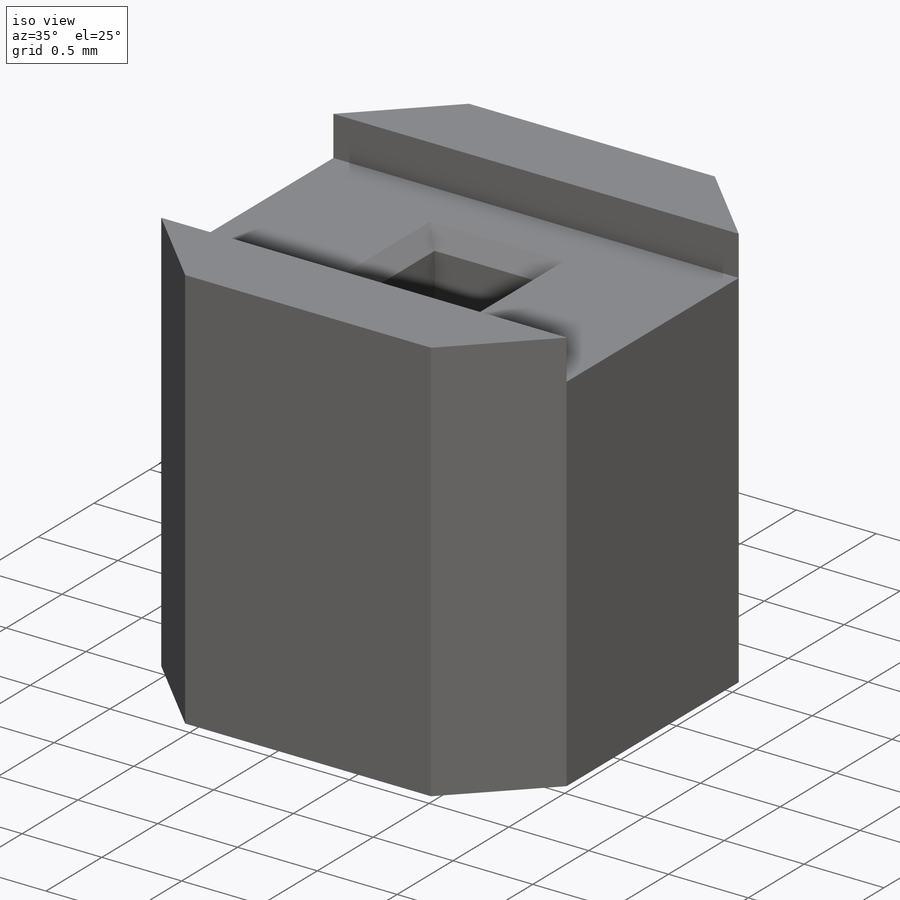
[diagram: iso view]
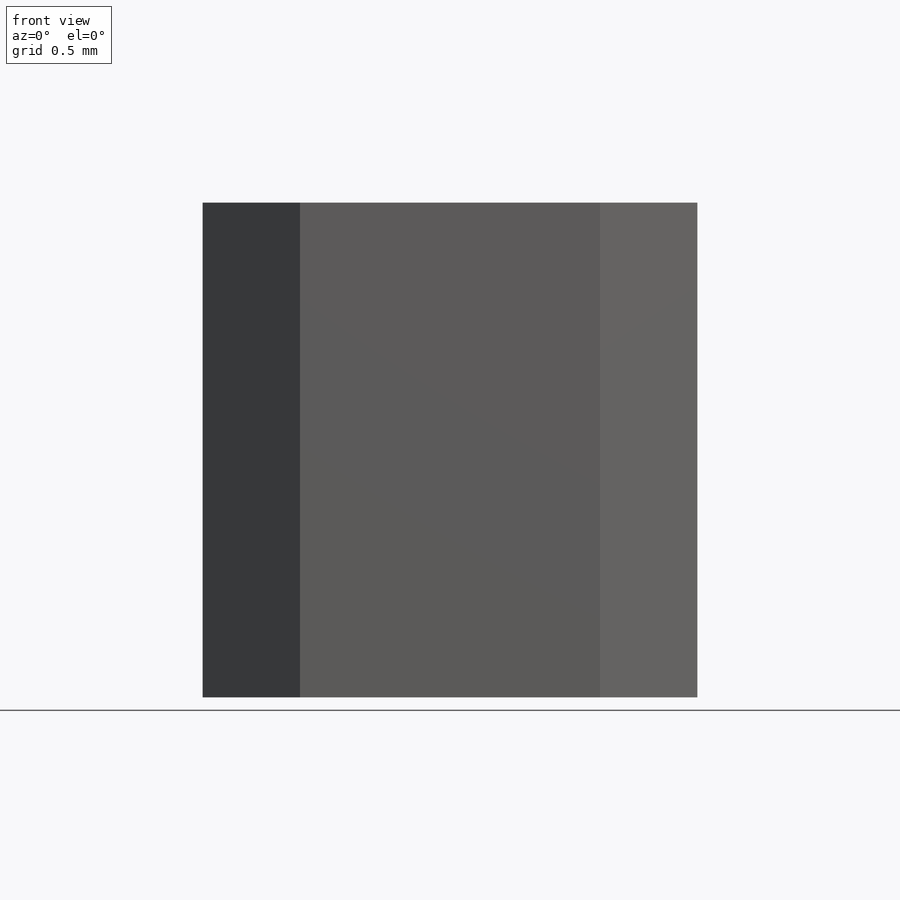
[diagram: front view]
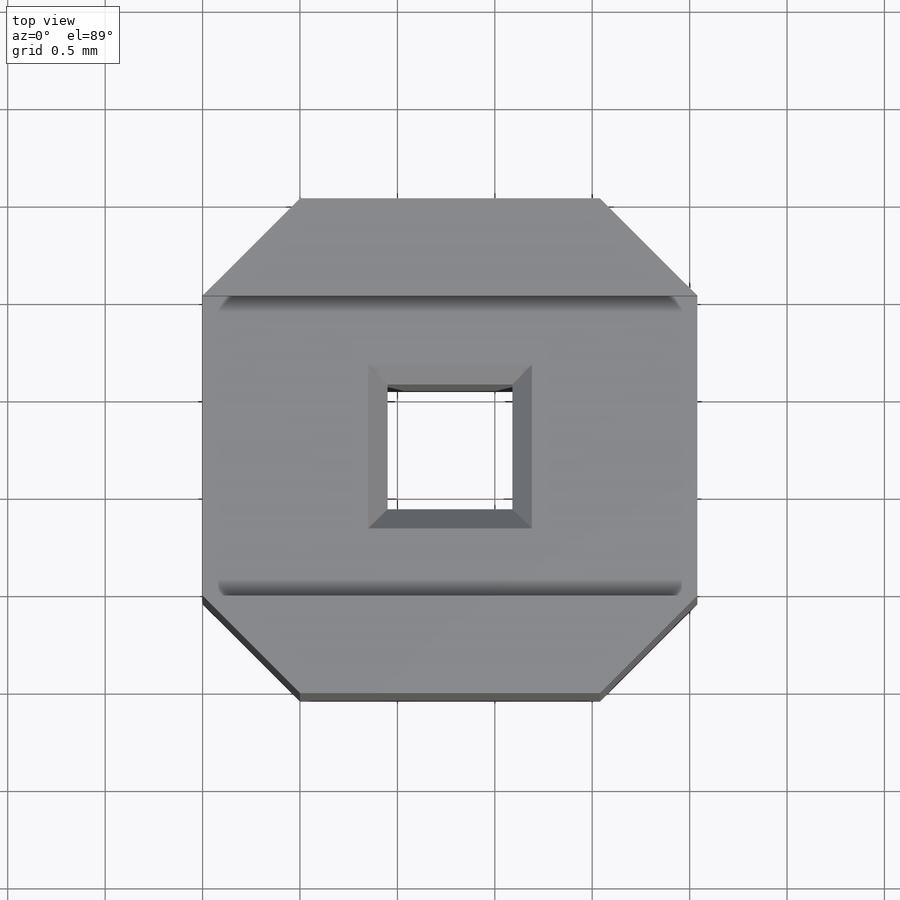
[diagram: top view]
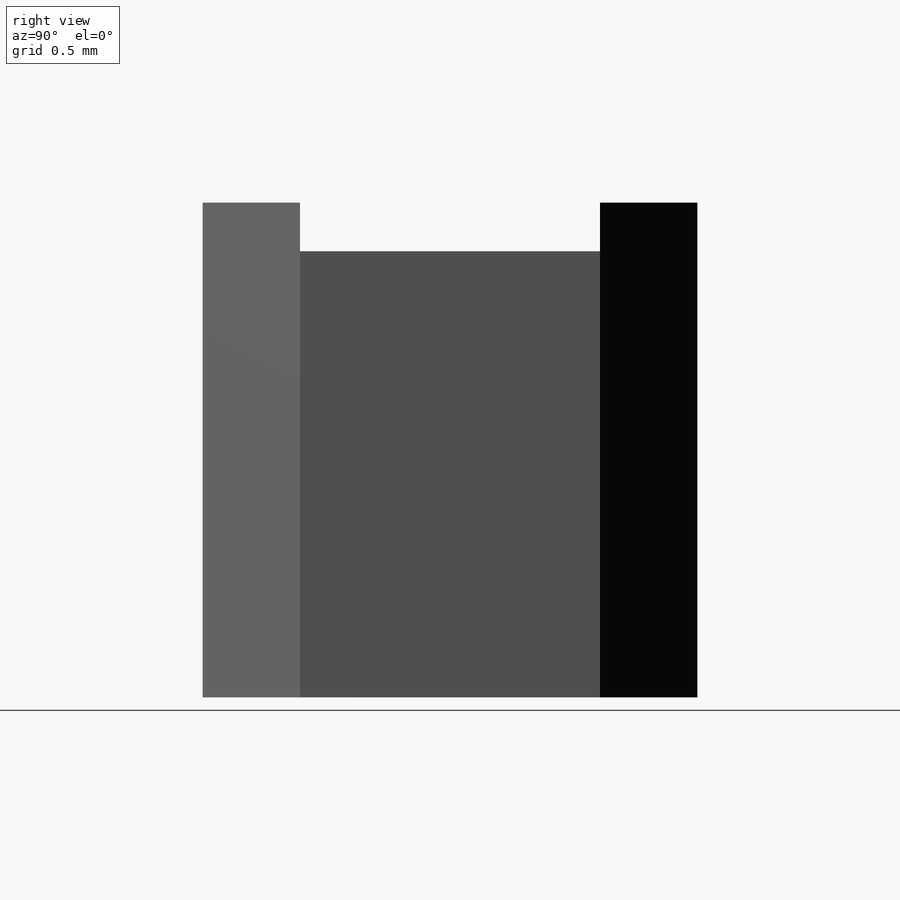
[diagram: right view]
SOLIDWORKS PART (.sldprt)
format: sldprt  version: not decoded by parser v0  size: 171,008 bytes
history: native  units: mm
features: sketch x3, chamfer x2, cut_extrude x2, material x1, extrude x1 (+13 scaffold rows collapsed)
feature tree (22):
  scaffold x13  (default folders/planes/origin — collapsed)
  material  "Material <not specified>"
  sketch  "Sketch1"  dims[D1=2.54mm D2=2.54mm]
  extrude  "Boss-Extrude1"  Depth=2.54mm
  chamfer  "Chamfer1"  Distance=0.5mm Angle=45deg
  sketch  "Sketch2"  dims[c1.D1=1.54mm c1.D2=1.27mm c1.D3=0.75mm c1.D4=2.54mm c2.D3=1.74mm c2.D1=1.54mm c2.D2=1.27mm c3.D3=0.77mm c3.D4=2.54mm]
  cut_extrude  "Cut-Extrude6"  Depth=0.25mm
  sketch  "Sketch3"  dims[c1.D1=1.0mm c1.D2=1.27mm c1.D3=1.27mm c1.D4=0.64mm c1.D5=0.64mm c2.D1=0.77mm c2.D2=1.13mm c2.D3=0.77mm c2.D6=1.13mm c3.D1=1.27mm c3.D2=1.27mm]
  cut_extrude  "Cut-Extrude7"  Depth=3mm
  chamfer  "Chamfer4"  Distance=0.1mm Angle=45deg
decode coverage: 8 of 8 modeling features carry decoded parameters
note: suppression state not decoded; provenance and decode notes live in map.json
